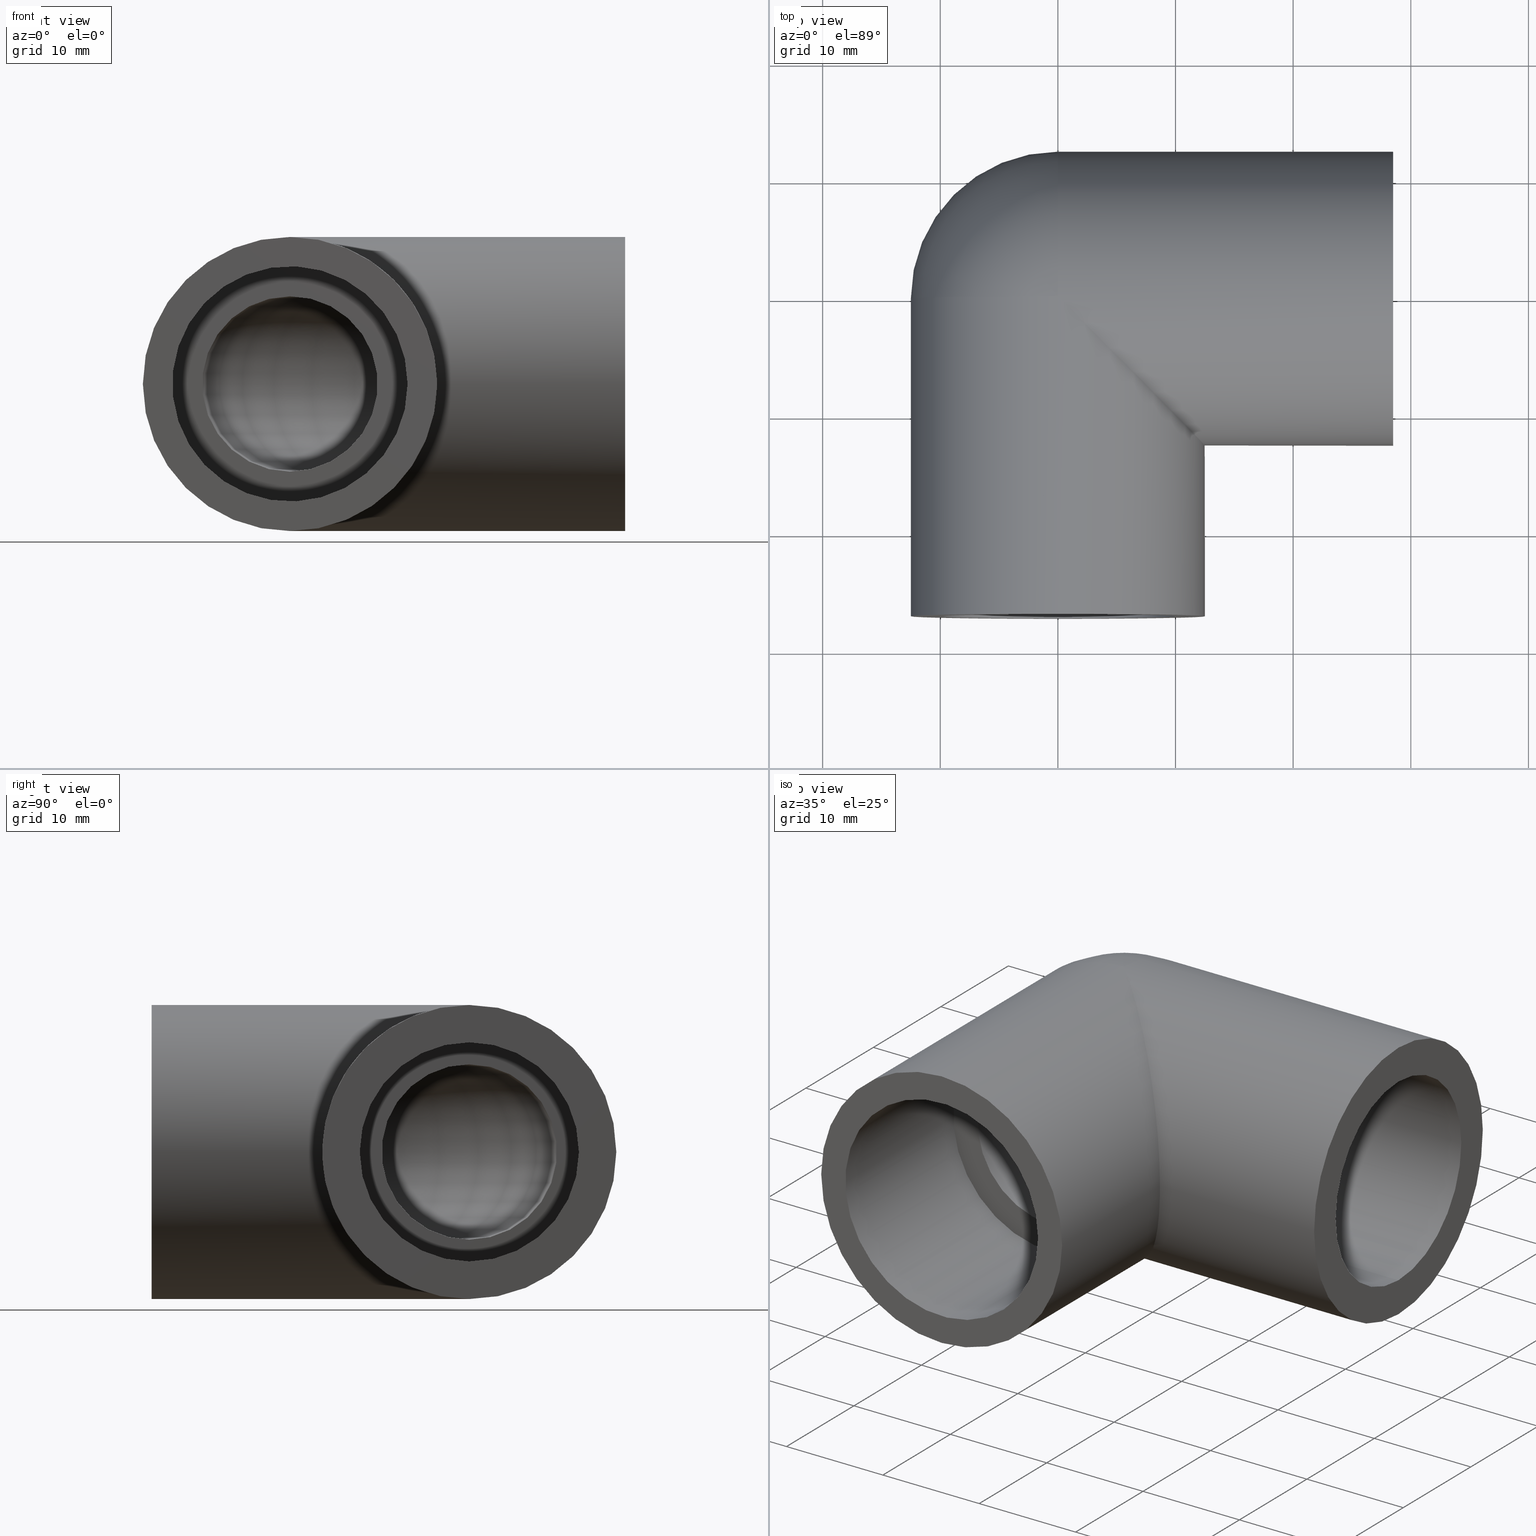
[diagram: canonical four-view strip — front | top / right | iso, engineering-drawing reading convention]
A machine part, canonical four-view strip (front | top / right | iso — engineering-drawing reading convention). The complete STEP part file that produces these views, byte-faithful:
ISO-10303-21;
HEADER;
/* Generated by software containing ST-Developer
 * from STEP Tools, Inc. (www.steptools.com) 
 */

FILE_DESCRIPTION(
/* description */ ('PLASSON 90\X\B0 ELBOW THR-CEM PVC 20-1/2"'),
/* implementation_level */ '2;1');

FILE_NAME(
/* name */ 
'C:\\Dropbox\\KIMPROJECTS-Inventor\\99-16-3568-Processing\\PVC Catalog
 2017\\050502\\050502020005.ipt.stp',
/* time_stamp */ '2017-12-07T15:56:16+02:00',
/* author */ ('KIM'),
/* organization */ (''),
/* preprocessor_version */ 'ST-DEVELOPER v15.6',
/* originating_system */ 'Autodesk Inventor 2015',
/* authorisation */ '');

FILE_SCHEMA (('AUTOMOTIVE_DESIGN { 1 0 10303 214 3 1 1 }'));
ENDSEC;

DATA;
#10=MECHANICAL_DESIGN_GEOMETRIC_PRESENTATION_REPRESENTATION('',(#13),#269);
#11=SHAPE_REPRESENTATION_RELATIONSHIP('SRR','None',#278,#12);
#12=ADVANCED_BREP_SHAPE_REPRESENTATION($,(#14),#268);
#13=STYLED_ITEM('',(#287),#14);
#14=MANIFOLD_SOLID_BREP('Solid1',#149);
#15=ELLIPSE('',#171,17.6776695296637,12.5);
#16=SPHERICAL_SURFACE('',#166,12.5);
#17=PLANE('',#161);
#18=PLANE('',#165);
#19=PLANE('',#172);
#20=PLANE('',#175);
#21=TOROIDAL_SURFACE('',#154,9.3155,7.4524);
#22=FACE_BOUND('',#46,.T.);
#23=FACE_BOUND('',#48,.T.);
#24=FACE_BOUND('',#50,.T.);
#25=FACE_BOUND('',#52,.T.);
#26=FACE_BOUND('',#54,.T.);
#27=FACE_BOUND('',#56,.T.);
#28=FACE_BOUND('',#58,.T.);
#29=FACE_BOUND('',#61,.T.);
#30=FACE_BOUND('',#63,.T.);
#31=FACE_BOUND('',#65,.T.);
#32=FACE_BOUND('',#67,.T.);
#33=FACE_OUTER_BOUND('',#45,.T.);
#34=FACE_OUTER_BOUND('',#47,.T.);
#35=FACE_OUTER_BOUND('',#49,.T.);
#36=FACE_OUTER_BOUND('',#51,.T.);
#37=FACE_OUTER_BOUND('',#53,.T.);
#38=FACE_OUTER_BOUND('',#55,.T.);
#39=FACE_OUTER_BOUND('',#57,.T.);
#40=FACE_OUTER_BOUND('',#59,.T.);
#41=FACE_OUTER_BOUND('',#60,.T.);
#42=FACE_OUTER_BOUND('',#62,.T.);
#43=FACE_OUTER_BOUND('',#64,.T.);
#44=FACE_OUTER_BOUND('',#66,.T.);
#45=EDGE_LOOP('',(#105));
#46=EDGE_LOOP('',(#106));
#47=EDGE_LOOP('',(#107));
#48=EDGE_LOOP('',(#108));
#49=EDGE_LOOP('',(#109));
#50=EDGE_LOOP('',(#110));
#51=EDGE_LOOP('',(#111));
#52=EDGE_LOOP('',(#112));
#53=EDGE_LOOP('',(#113));
#54=EDGE_LOOP('',(#114));
#55=EDGE_LOOP('',(#115));
#56=EDGE_LOOP('',(#116));
#57=EDGE_LOOP('',(#117));
#58=EDGE_LOOP('',(#118));
#59=EDGE_LOOP('',(#119,#120));
#60=EDGE_LOOP('',(#121));
#61=EDGE_LOOP('',(#122,#123));
#62=EDGE_LOOP('',(#124));
#63=EDGE_LOOP('',(#125));
#64=EDGE_LOOP('',(#126,#127));
#65=EDGE_LOOP('',(#128));
#66=EDGE_LOOP('',(#129));
#67=EDGE_LOOP('',(#130));
#68=CIRCLE('',#152,7.4524);
#69=CIRCLE('',#153,7.4524);
#70=CIRCLE('',#155,7.4524);
#71=CIRCLE('',#157,7.4524);
#72=CIRCLE('',#159,10.);
#73=CIRCLE('',#160,10.);
#74=CIRCLE('',#163,9.3155);
#75=CIRCLE('',#164,9.3155);
#76=CIRCLE('',#167,12.5);
#77=CIRCLE('',#168,12.5);
#78=CIRCLE('',#170,12.5);
#79=CIRCLE('',#174,12.5);
#80=VERTEX_POINT('',#230);
#81=VERTEX_POINT('',#232);
#82=VERTEX_POINT('',#235);
#83=VERTEX_POINT('',#238);
#84=VERTEX_POINT('',#241);
#85=VERTEX_POINT('',#243);
#86=VERTEX_POINT('',#247);
#87=VERTEX_POINT('',#249);
#88=VERTEX_POINT('',#253);
#89=VERTEX_POINT('',#254);
#90=VERTEX_POINT('',#258);
#91=VERTEX_POINT('',#263);
#92=EDGE_CURVE('',#80,#80,#68,.T.);
#93=EDGE_CURVE('',#81,#81,#69,.T.);
#94=EDGE_CURVE('',#82,#82,#70,.T.);
#95=EDGE_CURVE('',#83,#83,#71,.T.);
#96=EDGE_CURVE('',#84,#84,#72,.T.);
#97=EDGE_CURVE('',#85,#85,#73,.T.);
#98=EDGE_CURVE('',#86,#86,#74,.T.);
#99=EDGE_CURVE('',#87,#87,#75,.T.);
#100=EDGE_CURVE('',#88,#89,#76,.T.);
#101=EDGE_CURVE('',#88,#89,#77,.T.);
#102=EDGE_CURVE('',#90,#90,#78,.T.);
#103=EDGE_CURVE('',#89,#88,#15,.T.);
#104=EDGE_CURVE('',#91,#91,#79,.T.);
#105=ORIENTED_EDGE('',*,*,#92,.F.);
#106=ORIENTED_EDGE('',*,*,#93,.F.);
#107=ORIENTED_EDGE('',*,*,#93,.T.);
#108=ORIENTED_EDGE('',*,*,#94,.F.);
#109=ORIENTED_EDGE('',*,*,#94,.T.);
#110=ORIENTED_EDGE('',*,*,#95,.F.);
#111=ORIENTED_EDGE('',*,*,#96,.T.);
#112=ORIENTED_EDGE('',*,*,#97,.F.);
#113=ORIENTED_EDGE('',*,*,#96,.F.);
#114=ORIENTED_EDGE('',*,*,#92,.T.);
#115=ORIENTED_EDGE('',*,*,#98,.T.);
#116=ORIENTED_EDGE('',*,*,#99,.F.);
#117=ORIENTED_EDGE('',*,*,#98,.F.);
#118=ORIENTED_EDGE('',*,*,#95,.T.);
#119=ORIENTED_EDGE('',*,*,#100,.F.);
#120=ORIENTED_EDGE('',*,*,#101,.T.);
#121=ORIENTED_EDGE('',*,*,#102,.T.);
#122=ORIENTED_EDGE('',*,*,#103,.F.);
#123=ORIENTED_EDGE('',*,*,#101,.F.);
#124=ORIENTED_EDGE('',*,*,#102,.F.);
#125=ORIENTED_EDGE('',*,*,#97,.T.);
#126=ORIENTED_EDGE('',*,*,#103,.T.);
#127=ORIENTED_EDGE('',*,*,#100,.T.);
#128=ORIENTED_EDGE('',*,*,#104,.F.);
#129=ORIENTED_EDGE('',*,*,#104,.T.);
#130=ORIENTED_EDGE('',*,*,#99,.T.);
#131=CYLINDRICAL_SURFACE('',#151,7.4524);
#132=CYLINDRICAL_SURFACE('',#156,7.4524);
#133=CYLINDRICAL_SURFACE('',#158,10.);
#134=CYLINDRICAL_SURFACE('',#162,9.3155);
#135=CYLINDRICAL_SURFACE('',#169,12.5);
#136=CYLINDRICAL_SURFACE('',#173,12.5);
#137=ADVANCED_FACE('',(#33,#22),#131,.F.);
#138=ADVANCED_FACE('',(#34,#23),#21,.F.);
#139=ADVANCED_FACE('',(#35,#24),#132,.F.);
#140=ADVANCED_FACE('',(#36,#25),#133,.F.);
#141=ADVANCED_FACE('',(#37,#26),#17,.T.);
#142=ADVANCED_FACE('',(#38,#27),#134,.F.);
#143=ADVANCED_FACE('',(#39,#28),#18,.T.);
#144=ADVANCED_FACE('',(#40),#16,.T.);
#145=ADVANCED_FACE('',(#41,#29),#135,.T.);
#146=ADVANCED_FACE('',(#42,#30),#19,.T.);
#147=ADVANCED_FACE('',(#43,#31),#136,.T.);
#148=ADVANCED_FACE('',(#44,#32),#20,.T.);
#149=CLOSED_SHELL('',(#137,#138,#139,#140,#141,#142,#143,#144,#145,#146,
#147,#148));
#150=AXIS2_PLACEMENT_3D('placement',#228,#176,#177);
#151=AXIS2_PLACEMENT_3D('',#229,#178,#179);
#152=AXIS2_PLACEMENT_3D('',#231,#180,#181);
#153=AXIS2_PLACEMENT_3D('',#233,#182,#183);
#154=AXIS2_PLACEMENT_3D('',#234,#184,#185);
#155=AXIS2_PLACEMENT_3D('',#236,#186,#187);
#156=AXIS2_PLACEMENT_3D('',#237,#188,#189);
#157=AXIS2_PLACEMENT_3D('',#239,#190,#191);
#158=AXIS2_PLACEMENT_3D('',#240,#192,#193);
#159=AXIS2_PLACEMENT_3D('',#242,#194,#195);
#160=AXIS2_PLACEMENT_3D('',#244,#196,#197);
#161=AXIS2_PLACEMENT_3D('',#245,#198,#199);
#162=AXIS2_PLACEMENT_3D('',#246,#200,#201);
#163=AXIS2_PLACEMENT_3D('',#248,#202,#203);
#164=AXIS2_PLACEMENT_3D('',#250,#204,#205);
#165=AXIS2_PLACEMENT_3D('',#251,#206,#207);
#166=AXIS2_PLACEMENT_3D('',#252,#208,#209);
#167=AXIS2_PLACEMENT_3D('',#255,#210,#211);
#168=AXIS2_PLACEMENT_3D('',#256,#212,#213);
#169=AXIS2_PLACEMENT_3D('',#257,#214,#215);
#170=AXIS2_PLACEMENT_3D('',#259,#216,#217);
#171=AXIS2_PLACEMENT_3D('',#260,#218,#219);
#172=AXIS2_PLACEMENT_3D('',#261,#220,#221);
#173=AXIS2_PLACEMENT_3D('',#262,#222,#223);
#174=AXIS2_PLACEMENT_3D('',#264,#224,#225);
#175=AXIS2_PLACEMENT_3D('',#265,#226,#227);
#176=DIRECTION('axis',(0.,0.,1.));
#177=DIRECTION('refdir',(1.,0.,0.));
#178=DIRECTION('center_axis',(2.13861162563782E-17,-1.,0.));
#179=DIRECTION('ref_axis',(0.,0.,1.));
#180=DIRECTION('center_axis',(-1.22464679914735E-16,1.,0.));
#181=DIRECTION('ref_axis',(0.,0.,1.));
#182=DIRECTION('center_axis',(-6.12323399573677E-17,-1.,0.));
#183=DIRECTION('ref_axis',(0.,0.,1.));
#184=DIRECTION('center_axis',(0.,0.,1.));
#185=DIRECTION('ref_axis',(1.,0.,0.));
#186=DIRECTION('center_axis',(-1.,0.,0.));
#187=DIRECTION('ref_axis',(0.,0.,1.));
#188=DIRECTION('center_axis',(-1.,-3.35169540798253E-18,0.));
#189=DIRECTION('ref_axis',(0.,0.,1.));
#190=DIRECTION('center_axis',(-1.,0.,0.));
#191=DIRECTION('ref_axis',(0.,0.,1.));
#192=DIRECTION('center_axis',(-1.38777878078145E-16,1.,0.));
#193=DIRECTION('ref_axis',(-1.,-1.38777878078145E-16,0.));
#194=DIRECTION('center_axis',(-1.22464679914735E-16,1.,0.));
#195=DIRECTION('ref_axis',(-1.,-1.22464679914735E-16,0.));
#196=DIRECTION('center_axis',(-1.22464679914735E-16,1.,0.));
#197=DIRECTION('ref_axis',(-1.,-1.38777878078145E-16,0.));
#198=DIRECTION('center_axis',(1.22464679914735E-16,-1.,0.));
#199=DIRECTION('ref_axis',(0.,0.,-1.));
#200=DIRECTION('center_axis',(-1.,0.,0.));
#201=DIRECTION('ref_axis',(0.,0.,1.));
#202=DIRECTION('center_axis',(-1.,0.,0.));
#203=DIRECTION('ref_axis',(0.,0.,1.));
#204=DIRECTION('center_axis',(-1.,0.,0.));
#205=DIRECTION('ref_axis',(0.,0.,1.));
#206=DIRECTION('center_axis',(1.,0.,0.));
#207=DIRECTION('ref_axis',(0.,0.,-1.));
#208=DIRECTION('center_axis',(6.12323399573676E-17,0.,1.));
#209=DIRECTION('ref_axis',(1.,0.,0.));
#210=DIRECTION('center_axis',(1.,0.,0.));
#211=DIRECTION('ref_axis',(0.,0.,-1.));
#212=DIRECTION('center_axis',(-1.22464679914735E-16,1.,0.));
#213=DIRECTION('ref_axis',(1.,1.22464679914735E-16,0.));
#214=DIRECTION('center_axis',(-1.22464679914735E-16,1.,0.));
#215=DIRECTION('ref_axis',(-1.,0.,0.));
#216=DIRECTION('center_axis',(-1.22464679914735E-16,1.,0.));
#217=DIRECTION('ref_axis',(1.,1.22464679914735E-16,0.));
#218=DIRECTION('center_axis',(0.707106781186547,0.707106781186548,0.));
#219=DIRECTION('ref_axis',(-0.707106781186548,0.707106781186547,0.));
#220=DIRECTION('center_axis',(1.22464679914735E-16,-1.,0.));
#221=DIRECTION('ref_axis',(0.,0.,-1.));
#222=DIRECTION('center_axis',(1.,0.,0.));
#223=DIRECTION('ref_axis',(0.,1.,0.));
#224=DIRECTION('center_axis',(1.,0.,0.));
#225=DIRECTION('ref_axis',(0.,0.,-1.));
#226=DIRECTION('center_axis',(1.,0.,0.));
#227=DIRECTION('ref_axis',(0.,0.,-1.));
#228=CARTESIAN_POINT('',(0.,0.,0.));
#229=CARTESIAN_POINT('Origin',(7.3217786187381E-18,-9.3155,0.));
#230=CARTESIAN_POINT('',(-8.69309089143967E-16,-11.,-7.4524));
#231=CARTESIAN_POINT('Origin',(4.33466914526072E-17,-11.,0.));
#232=CARTESIAN_POINT('',(-9.05334001977836E-16,-9.31549999999999,-7.4524));
#233=CARTESIAN_POINT('Origin',(7.3217786187381E-18,-9.3155,0.));
#234=CARTESIAN_POINT('Origin',(9.3155,-9.3155,0.));
#235=CARTESIAN_POINT('',(9.31550000000001,9.05334001977836E-16,-7.4524));
#236=CARTESIAN_POINT('Origin',(9.31550000000001,-7.32177861873785E-18,0.));
#237=CARTESIAN_POINT('Origin',(11.5,0.,0.));
#238=CARTESIAN_POINT('',(11.5,9.12655780596574E-16,-7.4524));
#239=CARTESIAN_POINT('Origin',(11.5,0.,0.));
#240=CARTESIAN_POINT('Origin',(3.30654635769785E-15,-27.,0.));
#241=CARTESIAN_POINT('',(10.,-11.,1.22464679914735E-15));
#242=CARTESIAN_POINT('Origin',(1.08610030844754E-15,-11.,0.));
#243=CARTESIAN_POINT('',(10.,-27.,1.22464679914735E-15));
#244=CARTESIAN_POINT('Origin',(3.30654635769785E-15,-27.,0.));
#245=CARTESIAN_POINT('Origin',(5.50156104288387E-16,-11.,1.85037170770859E-16));
#246=CARTESIAN_POINT('Origin',(28.5,0.,0.));
#247=CARTESIAN_POINT('',(11.5,1.14081972574572E-15,-9.3155));
#248=CARTESIAN_POINT('Origin',(11.5,0.,0.));
#249=CARTESIAN_POINT('',(28.5,1.14081972574572E-15,-9.3155));
#250=CARTESIAN_POINT('Origin',(28.5,0.,0.));
#251=CARTESIAN_POINT('Origin',(11.5,0.,9.50683104788098E-17));
#252=CARTESIAN_POINT('Origin',(-4.59242549680257E-15,0.,0.));
#253=CARTESIAN_POINT('',(-4.59242549680257E-15,-3.74939945665464E-31,-12.5));
#254=CARTESIAN_POINT('',(-4.59242549680257E-15,-3.74939945665464E-31,12.5));
#255=CARTESIAN_POINT('Origin',(-4.44089209850063E-15,0.,0.));
#256=CARTESIAN_POINT('Origin',(0.,0.,0.));
#257=CARTESIAN_POINT('Origin',(1.65327317884893E-15,-13.5,0.));
#258=CARTESIAN_POINT('',(-12.5,-27.,0.));
#259=CARTESIAN_POINT('Origin',(3.30654635769785E-15,-27.,0.));
#260=CARTESIAN_POINT('Origin',(0.,0.,0.));
#261=CARTESIAN_POINT('Origin',(-12.5,-27.,0.));
#262=CARTESIAN_POINT('Origin',(14.25,0.,0.));
#263=CARTESIAN_POINT('',(28.5,12.5,0.));
#264=CARTESIAN_POINT('Origin',(28.5,0.,0.));
#265=CARTESIAN_POINT('Origin',(28.5,0.,0.));
#266=UNCERTAINTY_MEASURE_WITH_UNIT(LENGTH_MEASURE(0.01),#270,
'DISTANCE_ACCURACY_VALUE',
'Maximum model space distance between geometric entities at asserted c
onnectivities');
#267=UNCERTAINTY_MEASURE_WITH_UNIT(LENGTH_MEASURE(1.E-6),#270,
'DISTANCE_ACCURACY_VALUE',
'Maximum model space distance between geometric entities at asserted c
onnectivities');
#268=(
GEOMETRIC_REPRESENTATION_CONTEXT(3)
GLOBAL_UNCERTAINTY_ASSIGNED_CONTEXT((#266))
GLOBAL_UNIT_ASSIGNED_CONTEXT((#270,#273,#271))
REPRESENTATION_CONTEXT('','3D')
);
#269=(
GEOMETRIC_REPRESENTATION_CONTEXT(3)
GLOBAL_UNCERTAINTY_ASSIGNED_CONTEXT((#267))
GLOBAL_UNIT_ASSIGNED_CONTEXT((#270,#273,#271))
REPRESENTATION_CONTEXT('','3D')
);
#270=(
LENGTH_UNIT()
NAMED_UNIT(*)
SI_UNIT(.MILLI.,.METRE.)
);
#271=(
NAMED_UNIT(*)
SI_UNIT($,.STERADIAN.)
SOLID_ANGLE_UNIT()
);
#272=DIMENSIONAL_EXPONENTS(0.,0.,0.,0.,0.,0.,0.);
#273=(
CONVERSION_BASED_UNIT('degree',#275)
NAMED_UNIT(#272)
PLANE_ANGLE_UNIT()
);
#274=(
NAMED_UNIT(*)
PLANE_ANGLE_UNIT()
SI_UNIT($,.RADIAN.)
);
#275=PLANE_ANGLE_MEASURE_WITH_UNIT(PLANE_ANGLE_MEASURE(0.01745329252),#274);
#276=SHAPE_DEFINITION_REPRESENTATION(#277,#278);
#277=PRODUCT_DEFINITION_SHAPE('',$,#280);
#278=SHAPE_REPRESENTATION('',(#150),#268);
#279=PRODUCT_DEFINITION_CONTEXT('part definition',#284,'design');
#280=PRODUCT_DEFINITION('050502020005','050502020005',#281,#279);
#281=PRODUCT_DEFINITION_FORMATION('',$,#286);
#282=PRODUCT_RELATED_PRODUCT_CATEGORY('050502020005','050502020005',(#286));
#283=APPLICATION_PROTOCOL_DEFINITION('international standard',
'automotive_design',2009,#284);
#284=APPLICATION_CONTEXT(
'Core Data for Automotive Mechanical Design Process');
#285=PRODUCT_CONTEXT('part definition',#284,'mechanical');
#286=PRODUCT('050502020005','050502020005',$,(#285));
#287=PRESENTATION_STYLE_ASSIGNMENT((#288));
#288=SURFACE_STYLE_USAGE(.BOTH.,#289);
#289=SURFACE_SIDE_STYLE($,(#290));
#290=SURFACE_STYLE_FILL_AREA(#291);
#291=FILL_AREA_STYLE($,(#292));
#292=FILL_AREA_STYLE_COLOUR($,#293);
#293=COLOUR_RGB('',0.749019607843137,0.749019607843137,0.749019607843137);
ENDSEC;
END-ISO-10303-21;
